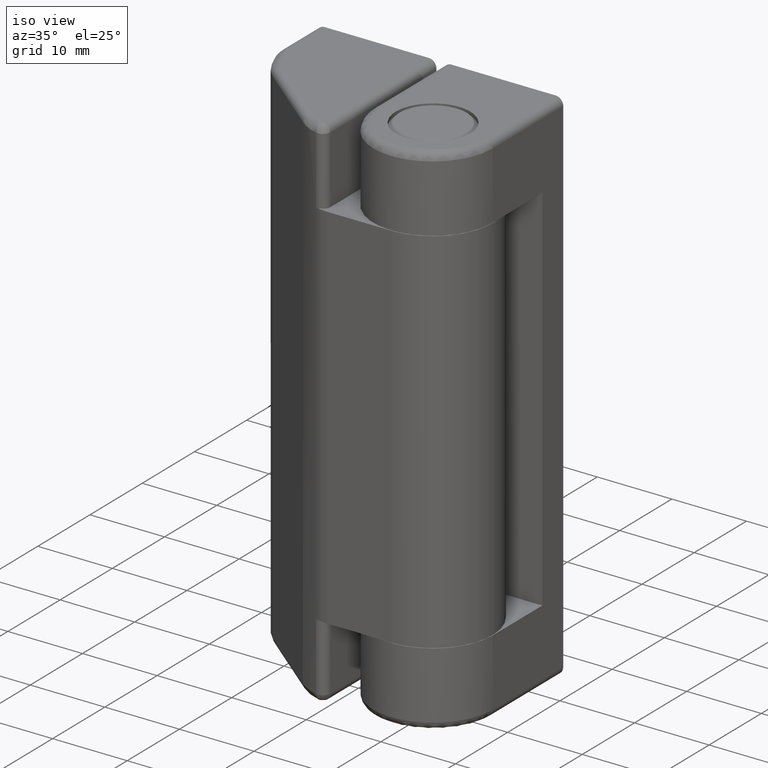
[diagram: clean part render]
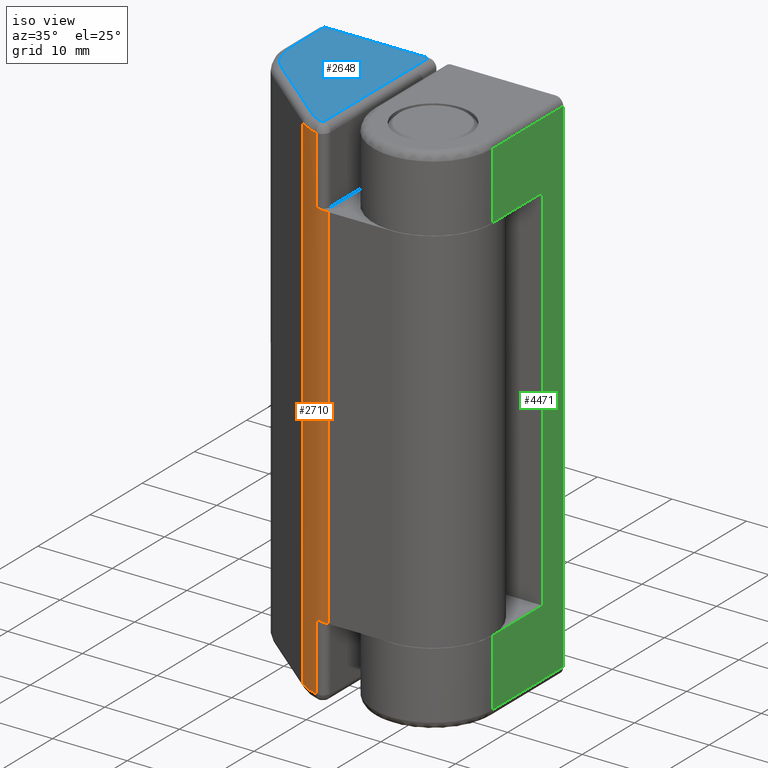
[diagram: same view with three faces highlighted in distinct colors, each labeled with its STEP entity id]
A machine part, iso view with three faces highlighted in distinct colors.
Their STEP definitions:

[orange] entity #2710 — the highlighted face is a freeform B-spline surface patch.
#1764=CARTESIAN_POINT('',(-12.936767999999800,-6.409084000000000,1.0));
#1765=VERTEX_POINT('',#1764);
#1812=CARTESIAN_POINT('',(-10.251068294446361,-7.775785825976549,1.0));
#1813=VERTEX_POINT('',#1812);
#1827=CARTESIAN_POINT('',(-12.936767999999800,-6.409084000000000,1.0));
#1828=CARTESIAN_POINT('',(-11.744537133790741,-7.388415616450649,1.0));
#1829=CARTESIAN_POINT('',(-10.251068294446361,-7.775785825976555,1.0));
#1837=(BOUNDED_CURVE()B_SPLINE_CURVE(2,(#1827,#1828,#1829),.UNSPECIFIED.,.F.,.U.)CURVE()GEOMETRIC_REPRESENTATION_ITEM()QUASI_UNIFORM_CURVE()RATIONAL_B_SPLINE_CURVE((1.0,0.976559830979944,1.0))REPRESENTATION_ITEM(''));
#1838=EDGE_CURVE('',#1765,#1813,#1837,.T.);
#2101=CARTESIAN_POINT('',(-12.936767999999800,-6.409084000000000,69.0));
#2102=VERTEX_POINT('',#2101);
#2151=CARTESIAN_POINT('',(-10.251068294446361,-7.775785825976549,69.0));
#2152=VERTEX_POINT('',#2151);
#2182=CARTESIAN_POINT('',(-10.251068294446361,-7.775785825976556,69.0));
#2183=CARTESIAN_POINT('',(-11.744537133790731,-7.388415616450652,69.0));
#2184=CARTESIAN_POINT('',(-12.936767999999800,-6.409084000000000,69.0));
#2192=(BOUNDED_CURVE()B_SPLINE_CURVE(2,(#2182,#2183,#2184),.UNSPECIFIED.,.F.,.U.)CURVE()GEOMETRIC_REPRESENTATION_ITEM()QUASI_UNIFORM_CURVE()RATIONAL_B_SPLINE_CURVE((1.0,0.976559830979944,1.0))REPRESENTATION_ITEM(''));
#2193=EDGE_CURVE('',#2152,#2102,#2192,.T.);
#2325=CARTESIAN_POINT('',(-8.493590999999800,-8.0,10.050003000000020));
#2326=VERTEX_POINT('',#2325);
#2332=CARTESIAN_POINT('',(-10.251068294446361,-7.775785825976549,10.050003000000020));
#2333=VERTEX_POINT('',#2332);
#2334=CARTESIAN_POINT('',(-8.493590999999800,-8.0,10.050003000000020));
#2335=CARTESIAN_POINT('',(-9.386631964525234,-8.0,10.050003000000022));
#2336=CARTESIAN_POINT('',(-10.251068294446361,-7.775785825976556,10.050003000000020));
#2344=(BOUNDED_CURVE()B_SPLINE_CURVE(2,(#2334,#2335,#2336),.UNSPECIFIED.,.F.,.U.)CURVE()GEOMETRIC_REPRESENTATION_ITEM()QUASI_UNIFORM_CURVE()RATIONAL_B_SPLINE_CURVE((1.0,0.991960030371924,1.0))REPRESENTATION_ITEM(''));
#2345=EDGE_CURVE('',#2326,#2333,#2344,.T.);
#2453=CARTESIAN_POINT('',(-10.251068294446361,-7.775785825976549,59.949996999999897));
#2454=VERTEX_POINT('',#2453);
#2470=CARTESIAN_POINT('',(-8.493590999999800,-8.0,59.949996999999897));
#2471=VERTEX_POINT('',#2470);
#2472=CARTESIAN_POINT('',(-8.493590999999800,-8.0,59.949996999999897));
#2473=CARTESIAN_POINT('',(-9.386631964525234,-8.0,59.949996999999897));
#2474=CARTESIAN_POINT('',(-10.251068294446361,-7.775785825976556,59.949996999999897));
#2482=(BOUNDED_CURVE()B_SPLINE_CURVE(2,(#2472,#2473,#2474),.UNSPECIFIED.,.F.,.U.)CURVE()GEOMETRIC_REPRESENTATION_ITEM()QUASI_UNIFORM_CURVE()RATIONAL_B_SPLINE_CURVE((1.0,0.991960030371924,1.0))REPRESENTATION_ITEM(''));
#2483=EDGE_CURVE('',#2471,#2454,#2482,.T.);
#2556=CARTESIAN_POINT('',(-8.493590999999800,-8.0,59.949996999999897));
#2557=CARTESIAN_POINT('',(-8.493590999999800,-8.0,10.050003000000020));
#2558=QUASI_UNIFORM_CURVE('',1,(#2556,#2557),.UNSPECIFIED.,.F.,.U.);
#2559=EDGE_CURVE('',#2471,#2326,#2558,.T.);
#2663=CARTESIAN_POINT('',(-10.251068294446361,-7.775785825976549,10.050003000000020));
#2664=CARTESIAN_POINT('',(-10.251068294446361,-7.775785825976549,1.0));
#2665=QUASI_UNIFORM_CURVE('',1,(#2663,#2664),.UNSPECIFIED.,.F.,.U.);
#2666=EDGE_CURVE('',#2333,#1813,#2665,.T.);
#2678=CARTESIAN_POINT('',(-13.089758638186559,-6.279701037150177,70.700000000000003));
#2679=CARTESIAN_POINT('',(-13.089758638186559,-6.279701037150177,-0.742500000000007));
#2680=CARTESIAN_POINT('',(-11.011707353047752,-8.088718631146902,70.700000000000003));
#2681=CARTESIAN_POINT('',(-11.011707353047752,-8.088718631146902,-0.742500000000007));
#2682=CARTESIAN_POINT('',(-8.258118392202430,-7.996038354024158,70.699999999999989));
#2683=CARTESIAN_POINT('',(-8.258118392202430,-7.996038354024158,-0.742500000000007));
#2691=(BOUNDED_SURFACE()B_SPLINE_SURFACE(1,2,((#2678,#2680,#2682),(#2679,#2681,#2683)),.UNSPECIFIED.,.F.,.F.,.U.)B_SPLINE_SURFACE_WITH_KNOTS((2,2),(3,3),(0.0,71.442500000000010),(0.0,5.311970471881990),.UNSPECIFIED.)GEOMETRIC_REPRESENTATION_ITEM()RATIONAL_B_SPLINE_SURFACE(((1.0,0.928930627520147,0.996590260115489),(1.0,0.928930627520147,0.996590260115489)))REPRESENTATION_ITEM('')SURFACE());
#2692=CARTESIAN_POINT('',(-12.936767999999800,-6.409084000000000,69.0));
#2693=CARTESIAN_POINT('',(-12.936767999999800,-6.409084000000000,1.0));
#2694=QUASI_UNIFORM_CURVE('',1,(#2692,#2693),.UNSPECIFIED.,.F.,.U.);
#2695=EDGE_CURVE('',#2102,#1765,#2694,.T.);
#2696=ORIENTED_EDGE('',*,*,#2695,.T.);
#2697=ORIENTED_EDGE('',*,*,#1838,.T.);
#2698=ORIENTED_EDGE('',*,*,#2666,.F.);
#2699=ORIENTED_EDGE('',*,*,#2345,.F.);
#2700=ORIENTED_EDGE('',*,*,#2559,.F.);
#2701=ORIENTED_EDGE('',*,*,#2483,.T.);
#2702=CARTESIAN_POINT('',(-10.251068294446361,-7.775785825976549,69.0));
#2703=CARTESIAN_POINT('',(-10.251068294446361,-7.775785825976549,59.949996999999897));
#2704=QUASI_UNIFORM_CURVE('',1,(#2702,#2703),.UNSPECIFIED.,.F.,.U.);
#2705=EDGE_CURVE('',#2152,#2454,#2704,.T.);
#2706=ORIENTED_EDGE('',*,*,#2705,.F.);
#2707=ORIENTED_EDGE('',*,*,#2193,.T.);
#2708=EDGE_LOOP('',(#2696,#2697,#2698,#2699,#2700,#2701,#2706,#2707));
#2709=FACE_OUTER_BOUND('',#2708,.T.);
#2710=ADVANCED_FACE('',(#2709),#2691,.T.);

[blue] entity #2648 — the highlighted face is a freeform B-spline surface patch.
#1976=CARTESIAN_POINT('',(-24.0,13.500000000000000,70.0));
#1977=VERTEX_POINT('',#1976);
#1998=CARTESIAN_POINT('',(-24.0,6.808834000000000,70.0));
#1999=VERTEX_POINT('',#1998);
#2013=CARTESIAN_POINT('',(-24.0,13.500000000000000,70.0));
#2014=CARTESIAN_POINT('',(-24.0,6.808834000000000,70.0));
#2015=QUASI_UNIFORM_CURVE('',1,(#2013,#2014),.UNSPECIFIED.,.F.,.U.);
#2016=EDGE_CURVE('',#1977,#1999,#2015,.T.);
#2040=CARTESIAN_POINT('',(-21.812655122359558,2.175945489777230,70.0));
#2041=VERTEX_POINT('',#2040);
#2057=CARTESIAN_POINT('',(-24.0,6.808834000000000,70.0));
#2058=CARTESIAN_POINT('',(-24.0,3.976029637885990,69.999999999999972));
#2059=CARTESIAN_POINT('',(-21.812655122359558,2.175945489777230,70.0));
#2067=(BOUNDED_CURVE()B_SPLINE_CURVE(2,(#2057,#2058,#2059),.UNSPECIFIED.,.F.,.U.)CURVE()GEOMETRIC_REPRESENTATION_ITEM()QUASI_UNIFORM_CURVE()RATIONAL_B_SPLINE_CURVE((1.0,0.904279427017613,1.0))REPRESENTATION_ITEM(''));
#2068=EDGE_CURVE('',#1999,#2041,#2067,.T.);
#2103=CARTESIAN_POINT('',(-12.302027913291660,-5.636357220650260,70.0));
#2104=VERTEX_POINT('',#2103);
#2120=CARTESIAN_POINT('',(-21.812655122359558,2.175945489777230,70.0));
#2121=CARTESIAN_POINT('',(-12.302027913291660,-5.636357220650260,70.0));
#2122=QUASI_UNIFORM_CURVE('',1,(#2120,#2121),.UNSPECIFIED.,.F.,.U.);
#2123=EDGE_CURVE('',#2041,#2104,#2122,.T.);
#2153=CARTESIAN_POINT('',(-9.999999999999799,-6.807816000000001,70.0));
#2154=VERTEX_POINT('',#2153);
#2168=CARTESIAN_POINT('',(-12.302027913291671,-5.636357220650269,70.0));
#2169=CARTESIAN_POINT('',(-11.280116214478754,-6.475784825268289,70.0));
#2170=CARTESIAN_POINT('',(-9.999999999999799,-6.807816000000001,70.0));
#2178=(BOUNDED_CURVE()B_SPLINE_CURVE(2,(#2168,#2169,#2170),.UNSPECIFIED.,.F.,.U.)CURVE()GEOMETRIC_REPRESENTATION_ITEM()QUASI_UNIFORM_CURVE()RATIONAL_B_SPLINE_CURVE((1.0,0.976559832501736,1.0))REPRESENTATION_ITEM(''));
#2179=EDGE_CURVE('',#2104,#2154,#2178,.T.);
#2278=CARTESIAN_POINT('',(-9.999999999999799,13.500000000000000,70.0));
#2279=VERTEX_POINT('',#2278);
#2293=CARTESIAN_POINT('',(-9.999999999999799,-6.807816000000001,70.0));
#2294=CARTESIAN_POINT('',(-9.999999999999799,13.500000000000000,70.0));
#2295=QUASI_UNIFORM_CURVE('',1,(#2293,#2294),.UNSPECIFIED.,.F.,.U.);
#2296=EDGE_CURVE('',#2154,#2279,#2295,.T.);
#2631=CARTESIAN_POINT('',(-24.699299972865301,-7.822191369839513,70.0));
#2632=CARTESIAN_POINT('',(-9.300699651625243,-7.822191369839513,70.0));
#2633=CARTESIAN_POINT('',(-24.699299972865301,14.514375914537590,70.0));
#2634=CARTESIAN_POINT('',(-9.300699651625243,14.514375914537590,70.0));
#2635=B_SPLINE_SURFACE_WITH_KNOTS('',1,1,((#2631,#2633),(#2632,#2634)),.UNSPECIFIED.,.F.,.F.,.U.,(2,2),(2,2),(0.0,15.398600321240060),(0.0,22.336567284377100),.UNSPECIFIED.);
#2636=CARTESIAN_POINT('',(-9.999999999999799,13.500000000000000,70.0));
#2637=CARTESIAN_POINT('',(-24.0,13.500000000000000,70.0));
#2638=QUASI_UNIFORM_CURVE('',1,(#2636,#2637),.UNSPECIFIED.,.F.,.U.);
#2639=EDGE_CURVE('',#2279,#1977,#2638,.T.);
#2640=ORIENTED_EDGE('',*,*,#2639,.T.);
#2641=ORIENTED_EDGE('',*,*,#2016,.T.);
#2642=ORIENTED_EDGE('',*,*,#2068,.T.);
#2643=ORIENTED_EDGE('',*,*,#2123,.T.);
#2644=ORIENTED_EDGE('',*,*,#2179,.T.);
#2645=ORIENTED_EDGE('',*,*,#2296,.T.);
#2646=EDGE_LOOP('',(#2640,#2641,#2642,#2643,#2644,#2645));
#2647=FACE_OUTER_BOUND('',#2646,.T.);
#2648=ADVANCED_FACE('',(#2647),#2635,.T.);

[green] entity #4471 — the highlighted face is a freeform B-spline surface patch.
#3924=CARTESIAN_POINT('',(8.0,0.0,1.0));
#3925=VERTEX_POINT('',#3924);
#3987=CARTESIAN_POINT('',(8.000000000000199,13.500000000000000,1.0));
#3988=VERTEX_POINT('',#3987);
#4004=CARTESIAN_POINT('',(8.0,0.0,1.0));
#4005=CARTESIAN_POINT('',(8.000000000000199,13.500000000000000,1.0));
#4006=QUASI_UNIFORM_CURVE('',1,(#4004,#4005),.UNSPECIFIED.,.F.,.U.);
#4007=EDGE_CURVE('',#3925,#3988,#4006,.T.);
#4102=CARTESIAN_POINT('',(8.0,0.0,69.0));
#4103=VERTEX_POINT('',#4102);
#4169=CARTESIAN_POINT('',(8.000000000000199,13.500000000000000,69.0));
#4170=VERTEX_POINT('',#4169);
#4190=CARTESIAN_POINT('',(8.000000000000199,13.500000000000000,69.0));
#4191=CARTESIAN_POINT('',(8.0,0.0,69.0));
#4192=QUASI_UNIFORM_CURVE('',1,(#4190,#4191),.UNSPECIFIED.,.F.,.U.);
#4193=EDGE_CURVE('',#4170,#4103,#4192,.T.);
#4203=CARTESIAN_POINT('',(8.000000000000231,9.500000000000000,60.0));
#4204=VERTEX_POINT('',#4203);
#4205=CARTESIAN_POINT('',(8.000000000000231,9.500000000000000,10.0));
#4206=VERTEX_POINT('',#4205);
#4207=CARTESIAN_POINT('',(8.000000000000231,9.500000000000000,60.0));
#4208=CARTESIAN_POINT('',(8.000000000000231,9.500000000000000,10.0));
#4209=QUASI_UNIFORM_CURVE('',1,(#4207,#4208),.UNSPECIFIED.,.F.,.U.);
#4210=EDGE_CURVE('',#4204,#4206,#4209,.T.);
#4239=CARTESIAN_POINT('',(8.000000000000231,0.0,10.0));
#4240=VERTEX_POINT('',#4239);
#4241=CARTESIAN_POINT('',(8.000000000000231,9.500000000000000,10.0));
#4242=CARTESIAN_POINT('',(8.000000000000231,0.0,10.0));
#4243=QUASI_UNIFORM_CURVE('',1,(#4241,#4242),.UNSPECIFIED.,.F.,.U.);
#4244=EDGE_CURVE('',#4206,#4240,#4243,.T.);
#4291=CARTESIAN_POINT('',(8.000000000000231,0.0,60.0));
#4292=VERTEX_POINT('',#4291);
#4293=CARTESIAN_POINT('',(8.000000000000231,0.0,60.0));
#4294=CARTESIAN_POINT('',(8.000000000000231,9.500000000000000,60.0));
#4295=QUASI_UNIFORM_CURVE('',1,(#4293,#4294),.UNSPECIFIED.,.F.,.U.);
#4296=EDGE_CURVE('',#4292,#4204,#4295,.T.);
#4390=CARTESIAN_POINT('',(8.000000000000231,0.0,10.0));
#4391=CARTESIAN_POINT('',(8.0,0.0,1.0));
#4392=QUASI_UNIFORM_CURVE('',1,(#4390,#4391),.UNSPECIFIED.,.F.,.U.);
#4393=EDGE_CURVE('',#4240,#3925,#4392,.T.);
#4417=CARTESIAN_POINT('',(8.0,0.0,69.0));
#4418=CARTESIAN_POINT('',(8.000000000000231,0.0,60.0));
#4419=QUASI_UNIFORM_CURVE('',1,(#4417,#4418),.UNSPECIFIED.,.F.,.U.);
#4420=EDGE_CURVE('',#4103,#4292,#4419,.T.);
#4452=CARTESIAN_POINT('',(8.000000000000199,-0.674324973834380,-2.396599868202804));
#4453=CARTESIAN_POINT('',(8.000000000000199,-0.674324973834380,72.396601692104923));
#4454=CARTESIAN_POINT('',(8.000000000000199,14.174325335932600,-2.396599868202804));
#4455=CARTESIAN_POINT('',(8.000000000000199,14.174325335932600,72.396601692104923));
#4456=B_SPLINE_SURFACE_WITH_KNOTS('',1,1,((#4452,#4454),(#4453,#4455)),.UNSPECIFIED.,.F.,.F.,.U.,(2,2),(2,2),(0.0,74.793201560307722),(0.0,14.848650309766979),.UNSPECIFIED.);
#4457=ORIENTED_EDGE('',*,*,#4393,.T.);
#4458=ORIENTED_EDGE('',*,*,#4007,.T.);
#4459=CARTESIAN_POINT('',(8.000000000000199,13.500000000000000,69.0));
#4460=CARTESIAN_POINT('',(8.000000000000199,13.500000000000000,1.0));
#4461=QUASI_UNIFORM_CURVE('',1,(#4459,#4460),.UNSPECIFIED.,.F.,.U.);
#4462=EDGE_CURVE('',#4170,#3988,#4461,.T.);
#4463=ORIENTED_EDGE('',*,*,#4462,.F.);
#4464=ORIENTED_EDGE('',*,*,#4193,.T.);
#4465=ORIENTED_EDGE('',*,*,#4420,.T.);
#4466=ORIENTED_EDGE('',*,*,#4296,.T.);
#4467=ORIENTED_EDGE('',*,*,#4210,.T.);
#4468=ORIENTED_EDGE('',*,*,#4244,.T.);
#4469=EDGE_LOOP('',(#4457,#4458,#4463,#4464,#4465,#4466,#4467,#4468));
#4470=FACE_OUTER_BOUND('',#4469,.T.);
#4471=ADVANCED_FACE('',(#4470),#4456,.F.);